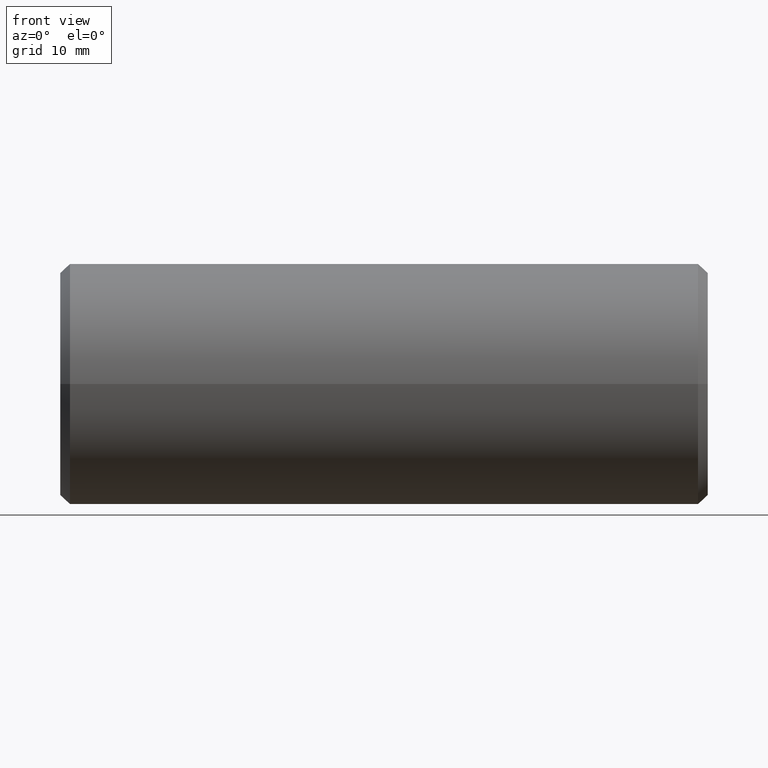
[diagram: clean part render]
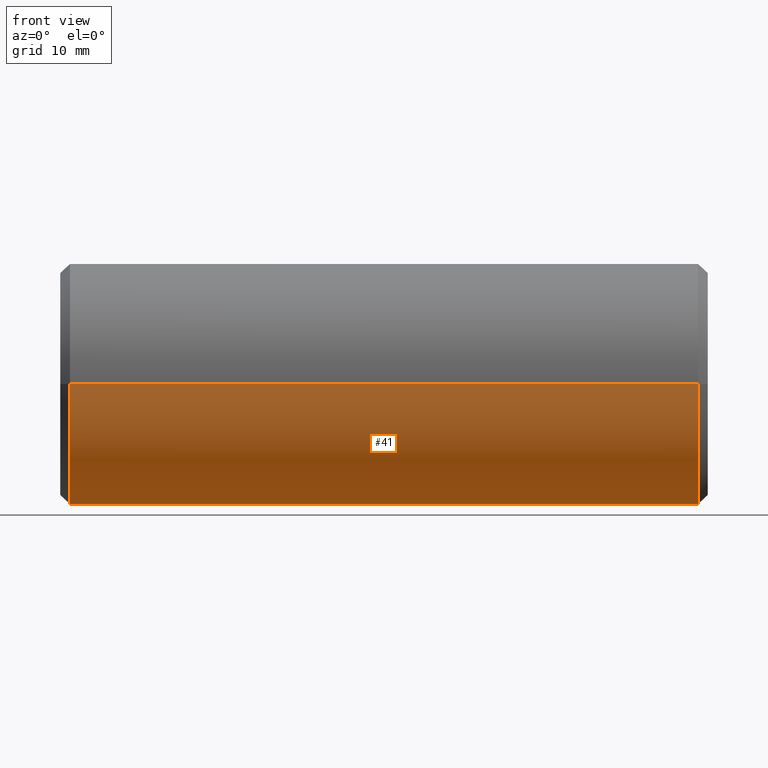
[diagram: same view with one face highlighted and labeled with its STEP entity id]
A machine part, front view. The second image highlights one B-rep face of the part: STEP entity #41.
In plain terms, the highlighted cylindrical surface (partial cylindrical patch) has radius 12.49 mm, axis along (1, 0, -0).
Its self-contained STEP definition (entity closure, byte-faithful):
#8 = ORIENTED_EDGE ( 'NONE', *, *, #21, .F. ) ;
#15 = VERTEX_POINT ( 'NONE', #234 ) ;
#17 = DIRECTION ( 'NONE',  ( -5.555559570782408784E-16, 1.000000000000000000, 0.000000000000000000 ) ) ;
#21 = EDGE_CURVE ( 'NONE', #314, #63, #205, .T. ) ;
#27 = VECTOR ( 'NONE', #42, 1000.000000000000000 ) ;
#40 = ORIENTED_EDGE ( 'NONE', *, *, #53, .T. ) ;
#41 = ADVANCED_FACE ( 'NONE', ( #202 ), #147, .T. ) ;
#42 = DIRECTION ( 'NONE',  ( 1.000000000000000000, 3.061616997868382648E-16, -0.000000000000000000 ) ) ;
#44 = AXIS2_PLACEMENT_3D ( 'NONE', #317, #212, #319 ) ;
#45 = LINE ( 'NONE', #148, #296 ) ;
#53 = EDGE_CURVE ( 'NONE', #15, #332, #45, .T. ) ;
#56 = CARTESIAN_POINT ( 'NONE',  ( 32.49999999999999289, 12.49000000000001087, 0.000000000000000000 ) ) ;
#63 = VERTEX_POINT ( 'NONE', #183 ) ;
#67 = CIRCLE ( 'NONE', #326, 12.49000000000000021 ) ;
#74 = DIRECTION ( 'NONE',  ( 5.555559570782408784E-16, -1.000000000000000000, 0.000000000000000000 ) ) ;
#75 = CARTESIAN_POINT ( 'NONE',  ( 32.50000000000000000, 1.181784161177195757E-14, 0.000000000000000000 ) ) ;
#88 = EDGE_CURVE ( 'NONE', #314, #15, #193, .T. ) ;
#89 = CARTESIAN_POINT ( 'NONE',  ( -33.49999999999999289, -12.49000000000000732, 1.529583852135044146E-15 ) ) ;
#111 = ORIENTED_EDGE ( 'NONE', *, *, #153, .T. ) ;
#119 = AXIS2_PLACEMENT_3D ( 'NONE', #259, #174, #17 ) ;
#147 = CYLINDRICAL_SURFACE ( 'NONE', #119, 12.49000000000000021 ) ;
#148 = CARTESIAN_POINT ( 'NONE',  ( -33.50000000000000711, 12.48999999999999133, 0.000000000000000000 ) ) ;
#153 = EDGE_CURVE ( 'NONE', #332, #63, #67, .T. ) ;
#174 = DIRECTION ( 'NONE',  ( 1.000000000000000000, 3.061616997868382648E-16, -0.000000000000000000 ) ) ;
#183 = CARTESIAN_POINT ( 'NONE',  ( 32.50000000000000711, -12.48999999999998778, 1.529583852135044146E-15 ) ) ;
#193 = CIRCLE ( 'NONE', #44, 12.49000000000000021 ) ;
#202 = FACE_OUTER_BOUND ( 'NONE', #224, .T. ) ;
#205 = LINE ( 'NONE', #89, #27 ) ;
#212 = DIRECTION ( 'NONE',  ( 1.000000000000000000, 3.061616997868385113E-16, 0.000000000000000000 ) ) ;
#224 = EDGE_LOOP ( 'NONE', ( #8, #311, #40, #111 ) ) ;
#234 = CARTESIAN_POINT ( 'NONE',  ( -32.50000000000002132, 12.48999999999999133, 0.000000000000000000 ) ) ;
#259 = CARTESIAN_POINT ( 'NONE',  ( -33.50000000000000000, -8.388830574159368693E-15, 0.000000000000000000 ) ) ;
#268 = DIRECTION ( 'NONE',  ( -1.000000000000000000, -3.061616997868373280E-16, -0.000000000000000000 ) ) ;
#274 = CARTESIAN_POINT ( 'NONE',  ( -32.50000000000000711, -12.49000000000000732, 1.529583852135045527E-15 ) ) ;
#293 = DIRECTION ( 'NONE',  ( 1.000000000000000000, 3.061616997868382648E-16, -0.000000000000000000 ) ) ;
#296 = VECTOR ( 'NONE', #293, 1000.000000000000000 ) ;
#311 = ORIENTED_EDGE ( 'NONE', *, *, #88, .T. ) ;
#314 = VERTEX_POINT ( 'NONE', #274 ) ;
#317 = CARTESIAN_POINT ( 'NONE',  ( -32.50000000000001421, -8.082668874372535555E-15, 0.000000000000000000 ) ) ;
#319 = DIRECTION ( 'NONE',  ( 5.555559570782408784E-16, -1.000000000000000000, 0.000000000000000000 ) ) ;
#326 = AXIS2_PLACEMENT_3D ( 'NONE', #75, #268, #74 ) ;
#332 = VERTEX_POINT ( 'NONE', #56 ) ;